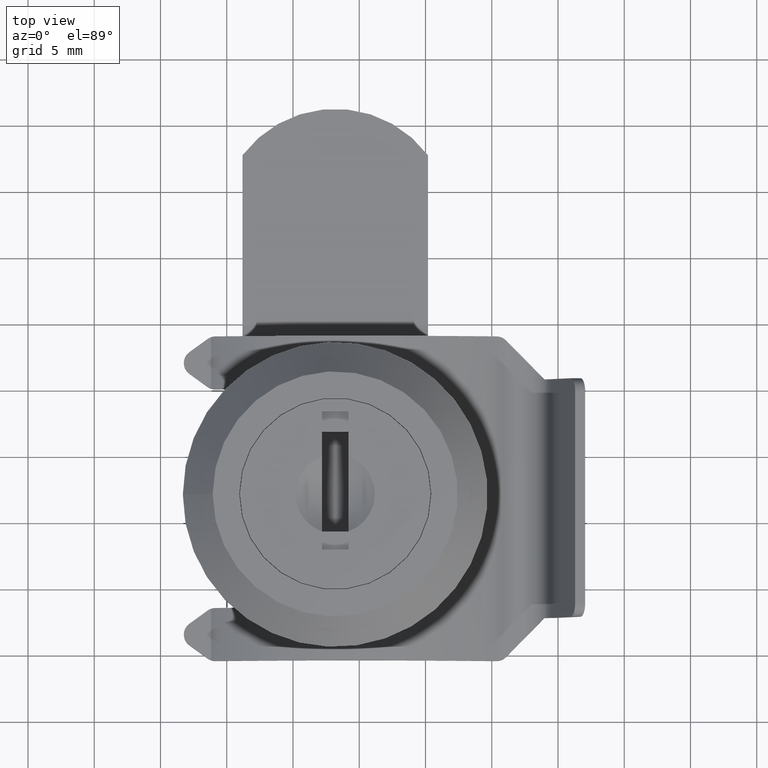
[diagram: clean part render]
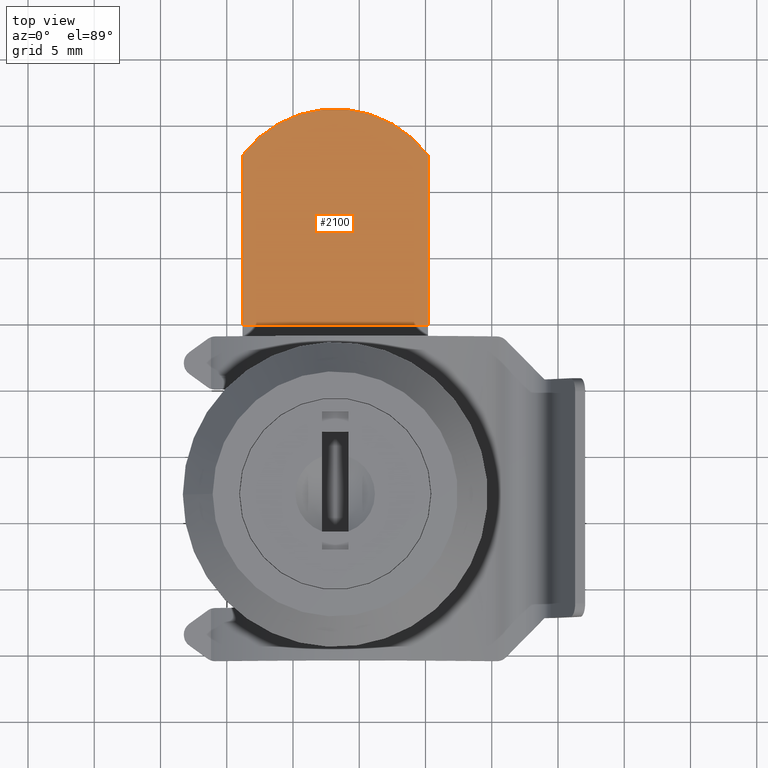
[diagram: same view with one face highlighted and labeled with its STEP entity id]
A machine part, top view. The second image highlights one B-rep face of the part: STEP entity #2100.
In plain terms, the highlighted planar face has unit normal (0, -0, 1).
Its self-contained STEP definition (entity closure, byte-faithful):
#184=FACE_OUTER_BOUND('',#320,.T.);
#320=EDGE_LOOP('',(#1628,#1629,#1630,#1631));
#480=LINE('',#3304,#677);
#482=LINE('',#3310,#679);
#483=LINE('',#3313,#680);
#677=VECTOR('',#2679,14.);
#679=VECTOR('',#2685,12.8162509150806);
#680=VECTOR('',#2688,12.8162509150806);
#807=CIRCLE('',#2263,8.75);
#945=VERTEX_POINT('',#3301);
#946=VERTEX_POINT('',#3303);
#948=VERTEX_POINT('',#3309);
#949=VERTEX_POINT('',#3311);
#1190=EDGE_CURVE('',#945,#946,#480,.T.);
#1193=EDGE_CURVE('',#948,#945,#482,.T.);
#1194=EDGE_CURVE('',#948,#949,#807,.T.);
#1195=EDGE_CURVE('',#946,#949,#483,.T.);
#1628=ORIENTED_EDGE('',*,*,#1190,.F.);
#1629=ORIENTED_EDGE('',*,*,#1193,.F.);
#1630=ORIENTED_EDGE('',*,*,#1194,.T.);
#1631=ORIENTED_EDGE('',*,*,#1195,.F.);
#2003=PLANE('',#2262);
#2100=ADVANCED_FACE('',(#184),#2003,.T.);
#2262=AXIS2_PLACEMENT_3D('',#3308,#2683,#2684);
#2263=AXIS2_PLACEMENT_3D('',#3312,#2686,#2687);
#2679=DIRECTION('',(-1.,0.,0.));
#2683=DIRECTION('center_axis',(0.,-1.2335811384724E-16,1.));
#2684=DIRECTION('ref_axis',(0.,-1.,-8.88178419700125E-17));
#2685=DIRECTION('',(0.,-1.,-1.2335811384724E-16));
#2686=DIRECTION('center_axis',(0.,-1.2335811384724E-16,1.));
#2687=DIRECTION('ref_axis',(0.8,0.6,0.));
#2688=DIRECTION('',(0.,1.,1.2335811384724E-16));
#3301=CARTESIAN_POINT('',(7.,21.1837490849194,-5.2));
#3303=CARTESIAN_POINT('',(-7.,21.1837490849194,-5.2));
#3304=CARTESIAN_POINT('',(0.,21.1837490849194,-5.2));
#3308=CARTESIAN_POINT('Origin',(0.,37.5,-5.2));
#3309=CARTESIAN_POINT('',(7.,34.,-5.2));
#3310=CARTESIAN_POINT('',(7.,37.5,-5.2));
#3311=CARTESIAN_POINT('',(-7.,34.,-5.2));
#3312=CARTESIAN_POINT('Origin',(1.11022302462516E-15,28.75,-5.2));
#3313=CARTESIAN_POINT('',(-7.,37.5,-5.2));